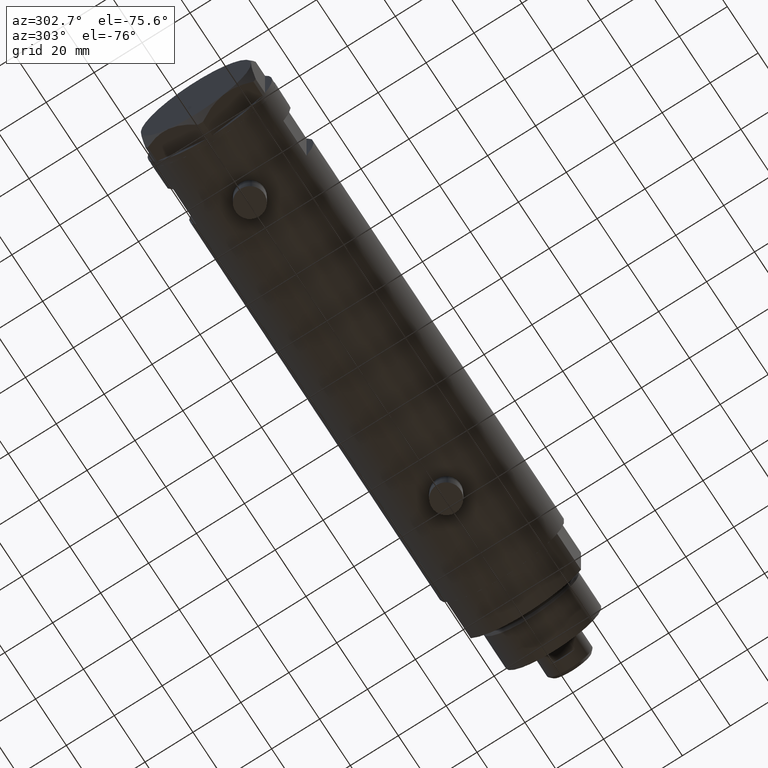
[diagram: clean part render]
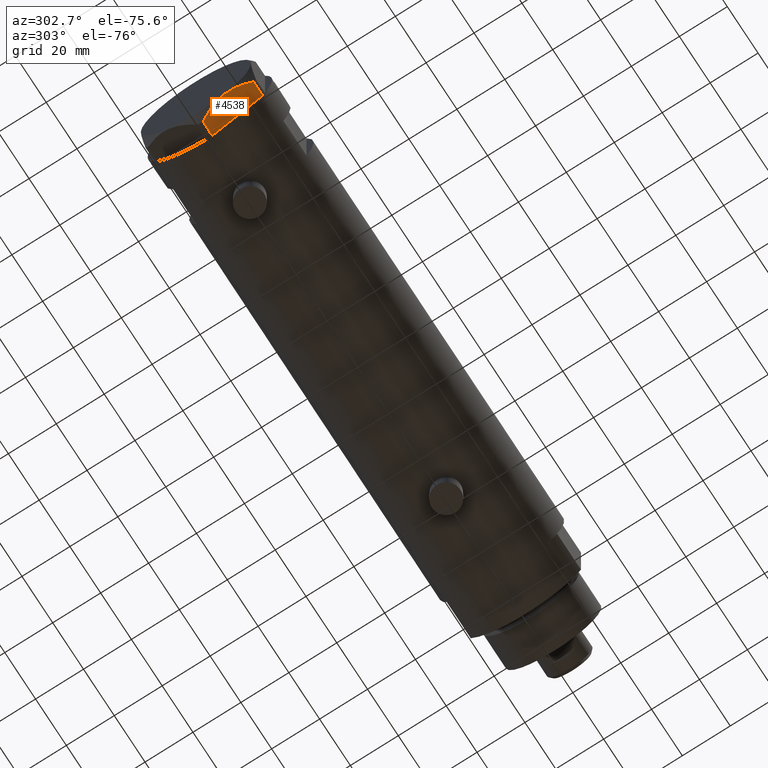
[diagram: same view with one face highlighted and labeled with its STEP entity id]
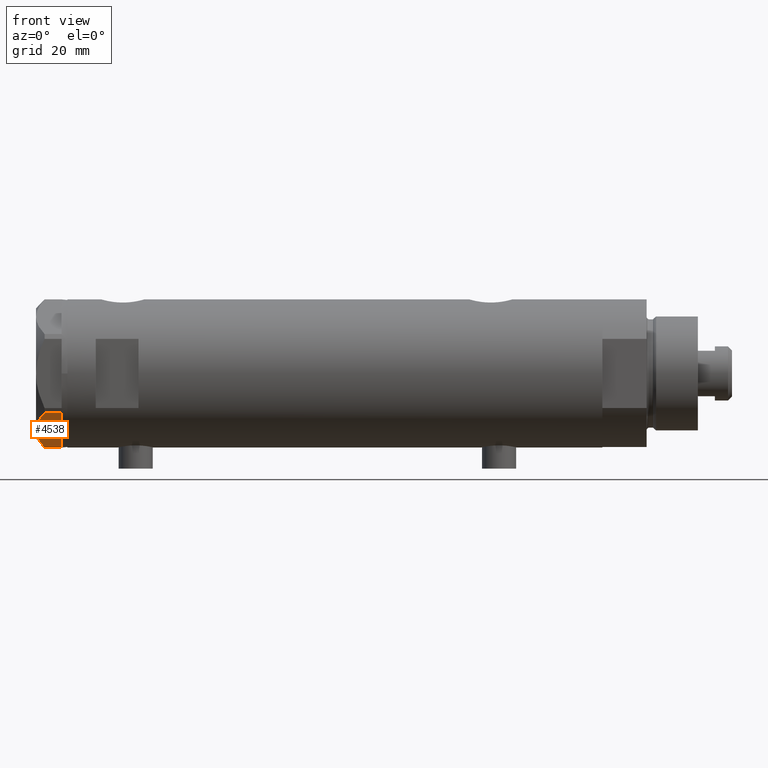
[diagram: same view with one face highlighted and labeled with its STEP entity id]
A machine part, auxiliary view. The second image highlights one B-rep face of the part: STEP entity #4538.
A second angle (front view) of the same face is appended — the face is thin or edge-on in the first view.
In plain terms, the highlighted planar face has unit normal (0, 0.5, 0.866).
Its self-contained STEP definition (entity closure, byte-faithful):
#44 = CARTESIAN_POINT ( 'NONE',  ( -0.9699484522385772856, 25.99811238272273783, 0.000000000000000000 ) ) ;
#70 = DIRECTION ( 'NONE',  ( 0.000000000000000000, 0.000000000000000000, 1.000000000000000000 ) ) ;
#208 = VERTEX_POINT ( 'NONE', #4545 ) ;
#440 = EDGE_CURVE ( 'NONE', #2167, #2607, #1250, .T. ) ;
#523 = CARTESIAN_POINT ( 'NONE',  ( -22.03005154776142760, 13.83905619136131904, 0.000000000000000000 ) ) ;
#710 = LINE ( 'NONE', #1855, #3262 ) ;
#713 = DIRECTION ( 'NONE',  ( -0.8660254037844380415, -0.5000000000000008882, 0.000000000000000000 ) ) ;
#769 = ORIENTED_EDGE ( 'NONE', *, *, #2206, .F. ) ;
#844 = CARTESIAN_POINT ( 'NONE',  ( -4.320186229909880105, 24.06385169993494699, 7.629374868826106493 ) ) ;
#963 = VERTEX_POINT ( 'NONE', #3118 ) ;
#1072 = CARTESIAN_POINT ( 'NONE',  ( -0.9699484522385775076, 25.99811238272273783, 9.000000000000000000 ) ) ;
#1136 = EDGE_CURVE ( 'NONE', #963, #4286, #2097, .T. ) ;
#1181 = VECTOR ( 'NONE', #70, 1000.000000000000000 ) ;
#1193 = CARTESIAN_POINT ( 'NONE',  ( -17.32831362639718975, 16.55360584592005679, 8.040681765829335248 ) ) ;
#1241 = B_SPLINE_CURVE_WITH_KNOTS ( 'NONE', 3,
 ( #1266, #3530, #1664, #1193, #2783, #3954, #4294, #3173, #4686, #4317 ),
 .UNSPECIFIED., .F., .F.,
 ( 4, 2, 2, 2, 4 ),
 ( 0.01376519981810312397, 0.01998941321701588544, 0.02154546656674408145, 0.02310151991647227399, 0.02621362661592866600 ),
 .UNSPECIFIED. ) ;
#1250 = LINE ( 'NONE', #2004, #1181 ) ;
#1266 = CARTESIAN_POINT ( 'NONE',  ( -11.50000000000004441, 19.91858428704211548, 9.000000000000000000 ) ) ;
#1299 = CARTESIAN_POINT ( 'NONE',  ( -2.626494320835632390, 25.04170517956325881, 6.877782426143454586 ) ) ;
#1324 = EDGE_CURVE ( 'NONE', #4286, #2167, #3307, .T. ) ;
#1344 = VECTOR ( 'NONE', #3893, 1000.000000000000227 ) ;
#1366 = CARTESIAN_POINT ( 'NONE',  ( 0.000000000000000000, 26.55811238272274366, 9.000000000000000000 ) ) ;
#1416 = ORIENTED_EDGE ( 'NONE', *, *, #1136, .T. ) ;
#1502 = CARTESIAN_POINT ( 'NONE',  ( -0.9699484522384356211, 25.99811238272282310, 5.983800287807548912 ) ) ;
#1602 = CARTESIAN_POINT ( 'NONE',  ( -10.58093321976963175, 20.44920774001128549, 8.981686407609499767 ) ) ;
#1664 = CARTESIAN_POINT ( 'NONE',  ( -15.11535457301033247, 17.83125835109856183, 8.707651728477001640 ) ) ;
#1709 = FACE_OUTER_BOUND ( 'NONE', #4467, .T. ) ;
#1855 = CARTESIAN_POINT ( 'NONE',  ( 0.000000000000000000, 26.55811238272274366, 0.000000000000000000 ) ) ;
#1862 = ORIENTED_EDGE ( 'NONE', *, *, #4186, .T. ) ;
#2004 = CARTESIAN_POINT ( 'NONE',  ( -22.03005154776143115, 13.83905619136131726, 9.000000000000000000 ) ) ;
#2030 = CARTESIAN_POINT ( 'NONE',  ( -11.50000000000004441, 19.91858428704211548, 9.000000000000000000 ) ) ;
#2045 = EDGE_CURVE ( 'NONE', #2765, #4261, #4140, .T. ) ;
#2066 = CARTESIAN_POINT ( 'NONE',  ( 0.000000000000000000, 26.55811238272274366, 0.000000000000000000 ) ) ;
#2073 = CARTESIAN_POINT ( 'NONE',  ( -22.03005154776144181, 13.83905619136131371, 5.983800287807625295 ) ) ;
#2097 = LINE ( 'NONE', #2066, #1344 ) ;
#2144 = EDGE_CURVE ( 'NONE', #2765, #208, #4163, .T. ) ;
#2154 = DIRECTION ( 'NONE',  ( 0.5000000000000009992, -0.8660254037844381525, 0.000000000000000000 ) ) ;
#2167 = VERTEX_POINT ( 'NONE', #523 ) ;
#2206 = EDGE_CURVE ( 'NONE', #208, #2607, #1241, .T. ) ;
#2257 = DIRECTION ( 'NONE',  ( 0.000000000000000000, 0.000000000000000000, -1.000000000000000000 ) ) ;
#2396 = CARTESIAN_POINT ( 'NONE',  ( -11.04134848610939557, 20.18338686205100885, 9.000000000000094147 ) ) ;
#2607 = VERTEX_POINT ( 'NONE', #2073 ) ;
#2712 = AXIS2_PLACEMENT_3D ( 'NONE', #1366, #2154, #2863 ) ;
#2765 = VERTEX_POINT ( 'NONE', #4592 ) ;
#2783 = CARTESIAN_POINT ( 'NONE',  ( -17.77001848220191604, 16.29858742851882170, 7.892128867758443356 ) ) ;
#2819 = ORIENTED_EDGE ( 'NONE', *, *, #2144, .F. ) ;
#2838 = VECTOR ( 'NONE', #713, 1000.000000000000227 ) ;
#2863 = DIRECTION ( 'NONE',  ( 0.8660254037844380415, 0.5000000000000008882, 0.000000000000000000 ) ) ;
#3118 = CARTESIAN_POINT ( 'NONE',  ( -0.9999999999999089617, 25.98076211353316367, 0.000000000000000000 ) ) ;
#3126 = CARTESIAN_POINT ( 'NONE',  ( -7.836767740116576952, 22.03355241838985279, 8.637313967156947214 ) ) ;
#3173 = CARTESIAN_POINT ( 'NONE',  ( -20.35958612119326361, 14.80349985506240884, 6.844201024438374859 ) ) ;
#3206 = PLANE ( 'NONE',  #2712 ) ;
#3257 = CARTESIAN_POINT ( 'NONE',  ( 0.000000000000000000, 26.55811238272274366, 0.000000000000000000 ) ) ;
#3262 = VECTOR ( 'NONE', #3335, 1000.000000000000227 ) ;
#3307 = LINE ( 'NONE', #3257, #2838 ) ;
#3335 = DIRECTION ( 'NONE',  ( -0.8660254037844380415, -0.5000000000000008882, 0.000000000000000000 ) ) ;
#3483 = CARTESIAN_POINT ( 'NONE',  ( -9.197898616902920210, 21.24770314027494678, 8.852712638955802404 ) ) ;
#3530 = CARTESIAN_POINT ( 'NONE',  ( -13.32175508098984729, 18.86679350063496585, 9.000000000000088818 ) ) ;
#3706 = CARTESIAN_POINT ( 'NONE',  ( -22.00000000000008171, 13.85640646055089498, 0.000000000000000000 ) ) ;
#3893 = DIRECTION ( 'NONE',  ( -0.8660254037844380415, -0.5000000000000008882, 0.000000000000000000 ) ) ;
#3949 = ORIENTED_EDGE ( 'NONE', *, *, #1324, .T. ) ;
#3954 = CARTESIAN_POINT ( 'NONE',  ( -18.64279229058394804, 15.79469123530778951, 7.570552255229721084 ) ) ;
#3961 = VECTOR ( 'NONE', #2257, 1000.000000000000000 ) ;
#4140 = LINE ( 'NONE', #1072, #3961 ) ;
#4163 = B_SPLINE_CURVE_WITH_KNOTS ( 'NONE', 3,
 ( #1502, #1299, #844, #4585, #3126, #3483, #4269, #1602, #2396, #2030 ),
 .UNSPECIFIED., .F., .F.,
 ( 4, 2, 2, 2, 4 ),
 ( 0.001228959670438516723, 0.007497079744270820564, 0.01063113978118697227, 0.01219816979964504812, 0.01376519981810312397 ),
 .UNSPECIFIED. ) ;
#4186 = EDGE_CURVE ( 'NONE', #4261, #963, #710, .T. ) ;
#4261 = VERTEX_POINT ( 'NONE', #44 ) ;
#4269 = CARTESIAN_POINT ( 'NONE',  ( -9.656518383329848021, 20.98291889467267168, 8.907842277728436287 ) ) ;
#4286 = VERTEX_POINT ( 'NONE', #3706 ) ;
#4294 = CARTESIAN_POINT ( 'NONE',  ( -19.07486218896994856, 15.54523556316589961, 7.397272853991406549 ) ) ;
#4317 = CARTESIAN_POINT ( 'NONE',  ( -22.03005154776144181, 13.83905619136131371, 5.983800287807625295 ) ) ;
#4467 = EDGE_LOOP ( 'NONE', ( #3949, #4649, #769, #2819, #4549, #1862, #1416 ) ) ;
#4538 = ADVANCED_FACE ( 'NONE', ( #1709 ), #3206, .F. ) ;
#4545 = CARTESIAN_POINT ( 'NONE',  ( -11.50000000000004441, 19.91858428704211548, 9.000000000000000000 ) ) ;
#4549 = ORIENTED_EDGE ( 'NONE', *, *, #2045, .T. ) ;
#4585 = CARTESIAN_POINT ( 'NONE',  ( -6.946777556903624529, 22.54738849024398206, 8.426899937603780089 ) ) ;
#4592 = CARTESIAN_POINT ( 'NONE',  ( -0.9699484522384356211, 25.99811238272282310, 5.983800287807548912 ) ) ;
#4649 = ORIENTED_EDGE ( 'NONE', *, *, #440, .T. ) ;
#4686 = CARTESIAN_POINT ( 'NONE',  ( -21.20080365460318461, 14.31782268570115768, 6.431317509509388408 ) ) ;